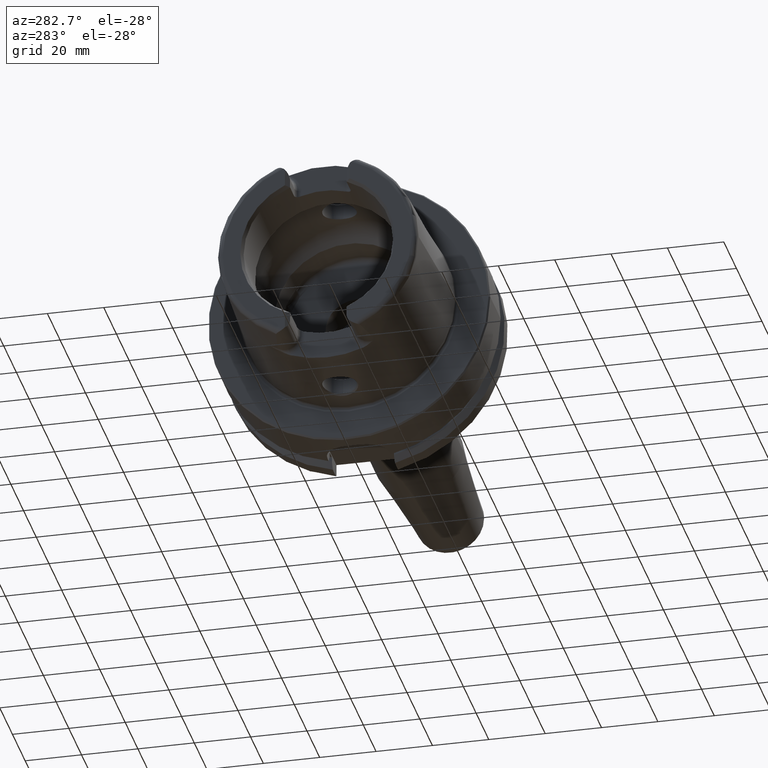
[diagram: clean part render]
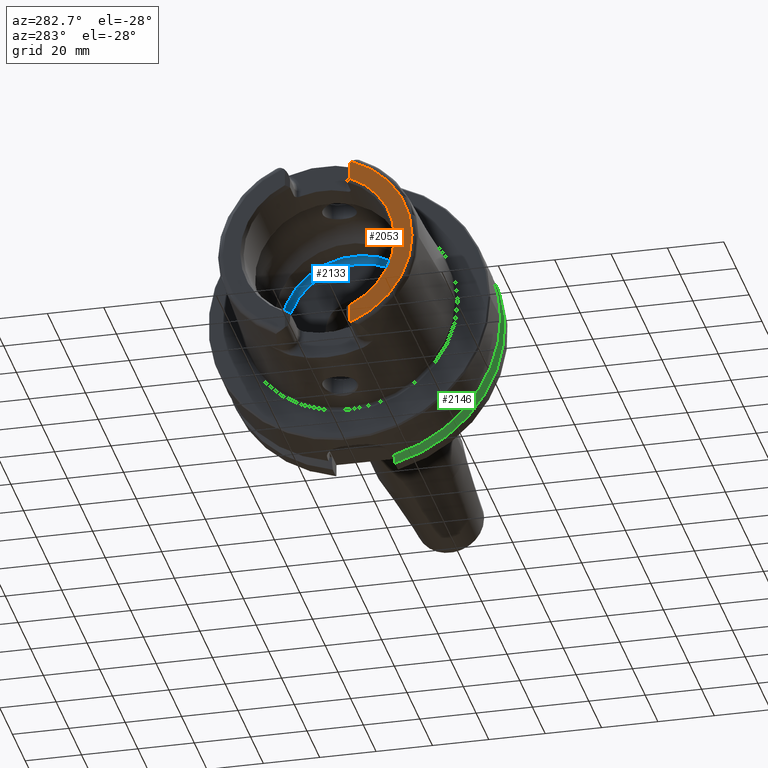
[diagram: same view with three faces highlighted in distinct colors, each labeled with its STEP entity id]
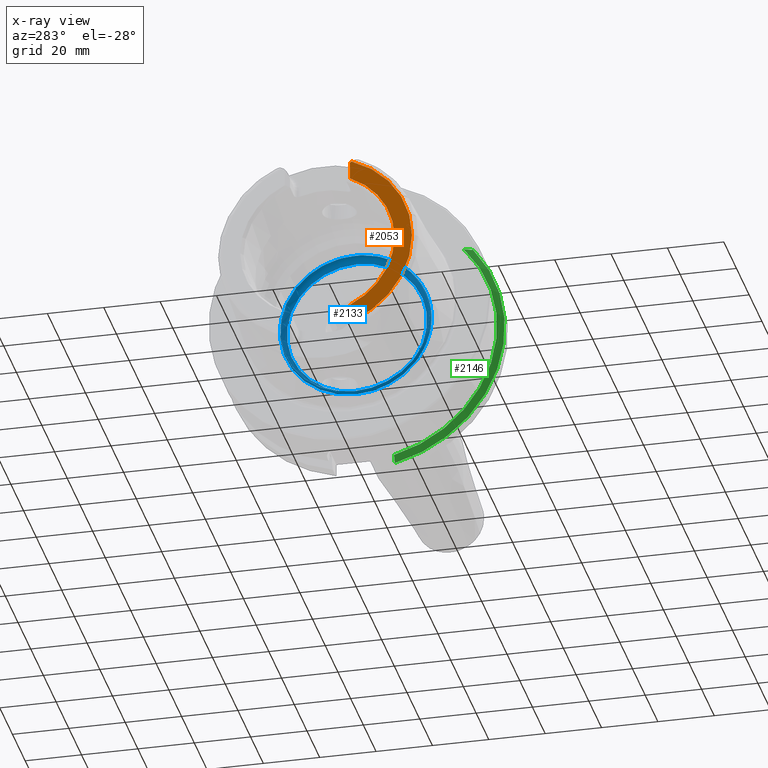
[diagram: x-ray of the same camera — body ghosted, the three highlighted faces saturated]
A machine part, auxiliary view with three faces highlighted in distinct colors.
The next image is the same camera in x-ray (body ghosted, the three faces saturated) — at least one of them is partly hidden behind the body in this view.
Their STEP definitions:

[orange] entity #2053 — the highlighted planar face has unit normal (-1, 0, 0).
#107=PLANE('',#2243);
#239=FACE_OUTER_BOUND('',#369,.T.);
#369=EDGE_LOOP('',(#1481,#1482,#1483,#1484,#1485,#1486));
#499=LINE('',#3264,#607);
#501=LINE('',#3283,#609);
#607=VECTOR('',#2598,10.);
#609=VECTOR('',#2620,10.);
#723=CIRCLE('',#2239,27.3660254037844);
#726=CIRCLE('',#2244,4.88);
#727=CIRCLE('',#2245,33.6001839277785);
#728=CIRCLE('',#2246,4.88);
#878=VERTEX_POINT('',#3261);
#879=VERTEX_POINT('',#3263);
#881=VERTEX_POINT('',#3269);
#884=VERTEX_POINT('',#3277);
#885=VERTEX_POINT('',#3279);
#886=VERTEX_POINT('',#3281);
#1105=EDGE_CURVE('',#878,#879,#499,.T.);
#1108=EDGE_CURVE('',#879,#881,#723,.T.);
#1112=EDGE_CURVE('',#878,#884,#726,.T.);
#1113=EDGE_CURVE('',#885,#884,#727,.T.);
#1114=EDGE_CURVE('',#885,#886,#728,.T.);
#1115=EDGE_CURVE('',#881,#886,#501,.T.);
#1481=ORIENTED_EDGE('',*,*,#1105,.F.);
#1482=ORIENTED_EDGE('',*,*,#1112,.T.);
#1483=ORIENTED_EDGE('',*,*,#1113,.F.);
#1484=ORIENTED_EDGE('',*,*,#1114,.T.);
#1485=ORIENTED_EDGE('',*,*,#1115,.F.);
#1486=ORIENTED_EDGE('',*,*,#1108,.F.);
#2053=ADVANCED_FACE('',(#239),#107,.T.);
#2239=AXIS2_PLACEMENT_3D('',#3270,#2604,#2605);
#2243=AXIS2_PLACEMENT_3D('',#3276,#2612,#2613);
#2244=AXIS2_PLACEMENT_3D('',#3278,#2614,#2615);
#2245=AXIS2_PLACEMENT_3D('',#3280,#2616,#2617);
#2246=AXIS2_PLACEMENT_3D('',#3282,#2618,#2619);
#2598=DIRECTION('',(0.,0.,1.));
#2604=DIRECTION('center_axis',(-1.,0.,0.));
#2605=DIRECTION('ref_axis',(0.,-1.,0.));
#2612=DIRECTION('center_axis',(-1.,0.,0.));
#2613=DIRECTION('ref_axis',(0.,0.,1.));
#2614=DIRECTION('center_axis',(-1.,0.,0.));
#2615=DIRECTION('ref_axis',(0.,-1.,0.));
#2616=DIRECTION('center_axis',(1.,0.,0.));
#2617=DIRECTION('ref_axis',(0.,0.,-1.));
#2618=DIRECTION('center_axis',(-1.,0.,0.));
#2619=DIRECTION('ref_axis',(0.,0.477884921181369,-0.878422450821629));
#2620=DIRECTION('',(0.,0.,1.));
#3261=CARTESIAN_POINT('',(-50.,-11.51,-30.8899431813596));
#3263=CARTESIAN_POINT('',(-50.,-11.51,-24.8277918148307));
#3264=CARTESIAN_POINT('',(-50.,-11.51,-13.685));
#3269=CARTESIAN_POINT('',(-50.,-11.51,24.8277918148307));
#3270=CARTESIAN_POINT('Origin',(-50.,0.,0.));
#3276=CARTESIAN_POINT('Origin',(-50.,33.6001839277785,0.));
#3277=CARTESIAN_POINT('',(-50.,-12.0743049948301,-31.355757348091));
#3278=CARTESIAN_POINT('Origin',(-50.,-14.89,-27.37));
#3279=CARTESIAN_POINT('',(-50.,-12.0743049948301,31.355757348091));
#3280=CARTESIAN_POINT('Origin',(-50.,0.,0.));
#3281=CARTESIAN_POINT('',(-50.,-11.51,30.8899431813596));
#3282=CARTESIAN_POINT('Origin',(-50.,-14.89,27.37));
#3283=CARTESIAN_POINT('',(-50.,-11.51,9.));

[blue] entity #2133 — the highlighted toroidal blend (fillet) surface has major radius 24.9 mm and minor (blend) radius 2 mm.
#160=TOROIDAL_SURFACE('',#2405,24.9,2.);
#319=FACE_OUTER_BOUND('',#455,.T.);
#455=EDGE_LOOP('',(#1932,#1933,#1934,#1935,#1936));
#806=CIRCLE('',#2404,24.9);
#807=CIRCLE('',#2406,2.);
#808=CIRCLE('',#2407,26.5);
#809=CIRCLE('',#2408,26.5);
#1026=VERTEX_POINT('',#4571);
#1027=VERTEX_POINT('',#4574);
#1028=VERTEX_POINT('',#4576);
#1335=EDGE_CURVE('',#1026,#1026,#806,.T.);
#1336=EDGE_CURVE('',#1026,#1027,#807,.T.);
#1337=EDGE_CURVE('',#1027,#1028,#808,.T.);
#1338=EDGE_CURVE('',#1028,#1027,#809,.T.);
#1932=ORIENTED_EDGE('',*,*,#1335,.F.);
#1933=ORIENTED_EDGE('',*,*,#1336,.T.);
#1934=ORIENTED_EDGE('',*,*,#1337,.T.);
#1935=ORIENTED_EDGE('',*,*,#1338,.T.);
#1936=ORIENTED_EDGE('',*,*,#1336,.F.);
#2133=ADVANCED_FACE('',(#319),#160,.F.);
#2404=AXIS2_PLACEMENT_3D('',#4572,#3008,#3009);
#2405=AXIS2_PLACEMENT_3D('',#4573,#3010,#3011);
#2406=AXIS2_PLACEMENT_3D('',#4575,#3012,#3013);
#2407=AXIS2_PLACEMENT_3D('',#4577,#3014,#3015);
#2408=AXIS2_PLACEMENT_3D('',#4578,#3016,#3017);
#3008=DIRECTION('center_axis',(-1.,0.,0.));
#3009=DIRECTION('ref_axis',(0.,0.,1.));
#3010=DIRECTION('center_axis',(-1.,0.,0.));
#3011=DIRECTION('ref_axis',(0.,0.,1.));
#3012=DIRECTION('center_axis',(0.,1.,-1.22464679914735E-16));
#3013=DIRECTION('ref_axis',(0.,-1.22464679914735E-16,-1.));
#3014=DIRECTION('center_axis',(-1.,0.,0.));
#3015=DIRECTION('ref_axis',(0.,0.,1.));
#3016=DIRECTION('center_axis',(-1.,0.,0.));
#3017=DIRECTION('ref_axis',(0.,0.,1.));
#4571=CARTESIAN_POINT('',(12.5,-3.04937052987691E-15,-24.9));
#4572=CARTESIAN_POINT('Origin',(12.5,0.,0.));
#4573=CARTESIAN_POINT('Origin',(10.5,0.,0.));
#4574=CARTESIAN_POINT('',(9.3,-3.24531401774049E-15,-26.5));
#4575=CARTESIAN_POINT('Origin',(10.5,-3.04937052987691E-15,-24.9));
#4576=CARTESIAN_POINT('',(9.3,-26.5,3.24531401774049E-15));
#4577=CARTESIAN_POINT('Origin',(9.3,0.,0.));
#4578=CARTESIAN_POINT('Origin',(9.3,0.,0.));

[green] entity #2146 — the highlighted conical surface has half-angle 60 deg.
#20=(
BOUNDED_CURVE()
B_SPLINE_CURVE(2,(#4092,#4093,#4094),.UNSPECIFIED.,.F.,.F.)
B_SPLINE_CURVE_WITH_KNOTS((3,3),(0.,0.343884390880419),.UNSPECIFIED.)
CURVE()
GEOMETRIC_REPRESENTATION_ITEM()
RATIONAL_B_SPLINE_CURVE((1.,1.00052016257005,1.))
REPRESENTATION_ITEM('')
);
#25=(
BOUNDED_CURVE()
B_SPLINE_CURVE(2,(#4307,#4308,#4309),.UNSPECIFIED.,.F.,.F.)
B_SPLINE_CURVE_WITH_KNOTS((3,3),(0.,0.28292349080556),.UNSPECIFIED.)
CURVE()
GEOMETRIC_REPRESENTATION_ITEM()
RATIONAL_B_SPLINE_CURVE((1.,1.0003193410929,1.))
REPRESENTATION_ITEM('')
);
#332=FACE_OUTER_BOUND('',#469,.T.);
#469=EDGE_LOOP('',(#1991,#1992,#1993,#1994));
#770=CIRCLE('',#2328,50.);
#822=CIRCLE('',#2433,47.5975952641917);
#953=VERTEX_POINT('',#4089);
#954=VERTEX_POINT('',#4091);
#988=VERTEX_POINT('',#4304);
#989=VERTEX_POINT('',#4306);
#1204=EDGE_CURVE('',#954,#953,#20,.T.);
#1254=EDGE_CURVE('',#989,#988,#25,.T.);
#1270=EDGE_CURVE('',#954,#988,#770,.T.);
#1355=EDGE_CURVE('',#953,#989,#822,.T.);
#1991=ORIENTED_EDGE('',*,*,#1204,.T.);
#1992=ORIENTED_EDGE('',*,*,#1355,.T.);
#1993=ORIENTED_EDGE('',*,*,#1254,.T.);
#1994=ORIENTED_EDGE('',*,*,#1270,.F.);
#2025=CONICAL_SURFACE('',#2434,48.7987976320958,1.0471975511966);
#2146=ADVANCED_FACE('',(#332),#2025,.T.);
#2328=AXIS2_PLACEMENT_3D('',#4369,#2836,#2837);
#2433=AXIS2_PLACEMENT_3D('',#4613,#3070,#3071);
#2434=AXIS2_PLACEMENT_3D('',#4614,#3072,#3073);
#2836=DIRECTION('center_axis',(1.,0.,0.));
#2837=DIRECTION('ref_axis',(0.,0.,-1.));
#3070=DIRECTION('center_axis',(1.,0.,0.));
#3071=DIRECTION('ref_axis',(0.,0.,-1.));
#3072=DIRECTION('center_axis',(1.,0.,0.));
#3073=DIRECTION('ref_axis',(0.,-0.951449961441176,-0.307803461438603));
#4089=CARTESIAN_POINT('',(21.875,-35.6830642593065,31.5));
#4091=CARTESIAN_POINT('',(23.2620290209214,-38.8297566307078,31.5));
#4092=CARTESIAN_POINT('Ctrl Pts',(23.2620290209214,-38.8297566307078,31.5));
#4093=CARTESIAN_POINT('Ctrl Pts',(22.5392272442767,-37.2176818849707,31.5));
#4094=CARTESIAN_POINT('Ctrl Pts',(21.875,-35.6830642593065,31.5));
#4304=CARTESIAN_POINT('',(23.2620290209214,-11.,-48.7749935930288));
#4306=CARTESIAN_POINT('',(21.875,-11.,-46.3090819919138));
#4307=CARTESIAN_POINT('Ctrl Pts',(21.875,-11.,-46.3090819919138));
#4308=CARTESIAN_POINT('Ctrl Pts',(22.5505288964237,-11.,-47.5116880808802));
#4309=CARTESIAN_POINT('Ctrl Pts',(23.2620290209214,-11.,-48.7749935930288));
#4369=CARTESIAN_POINT('Origin',(23.2620290209214,0.,0.));
#4613=CARTESIAN_POINT('Origin',(21.875,0.,0.));
#4614=CARTESIAN_POINT('Origin',(22.5685145104607,0.,0.));